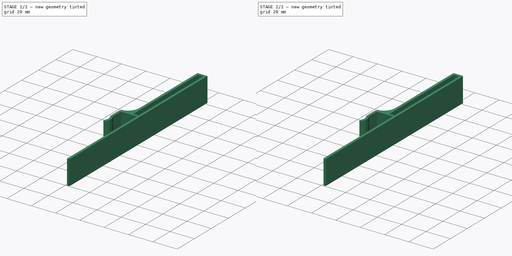
[diagram: build sequence overview — one tinted view per stage of 2, left to right]
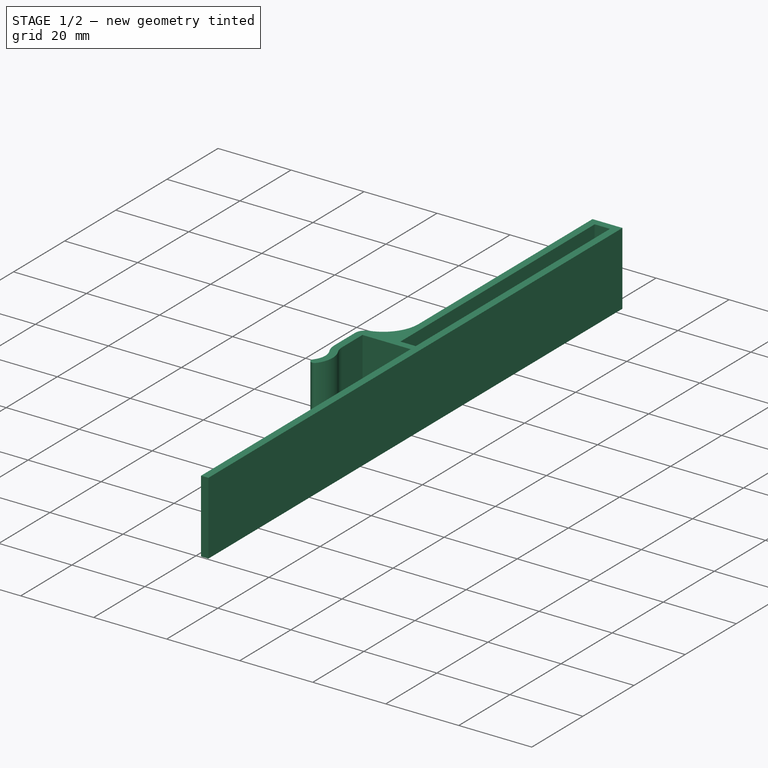
[diagram: stage 1 of 2 — iso view after this stage's code; geometry added in this stage tinted green]
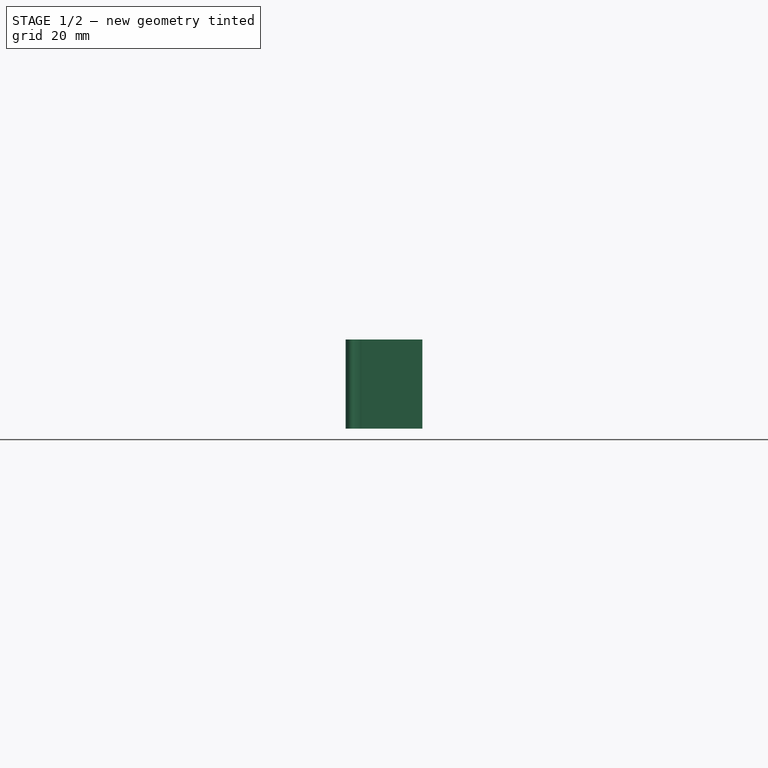
[diagram: stage 1 of 2 — front view after this stage's code; geometry added in this stage tinted green]
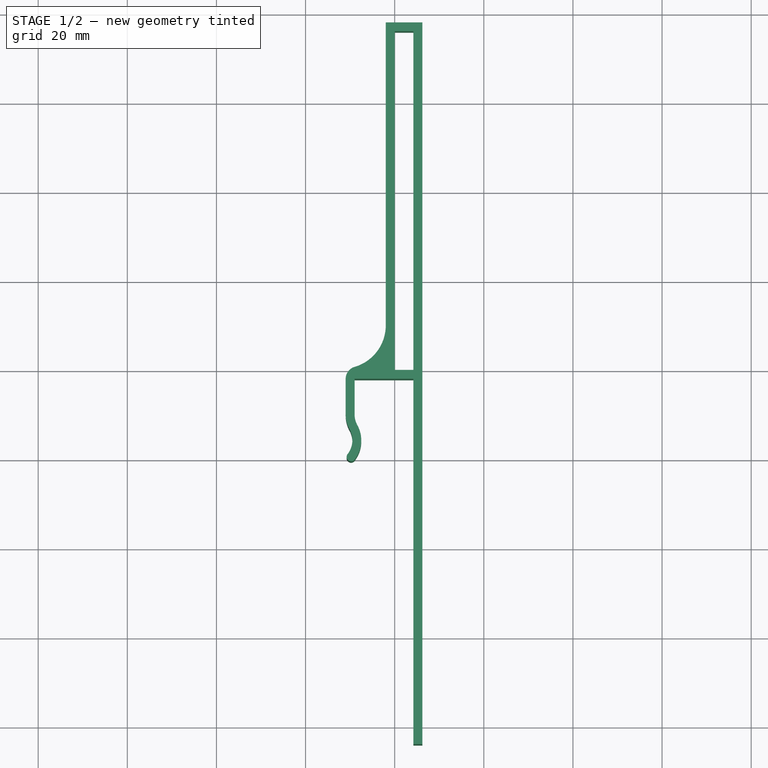
[diagram: stage 1 of 2 — top view after this stage's code; geometry added in this stage tinted green]
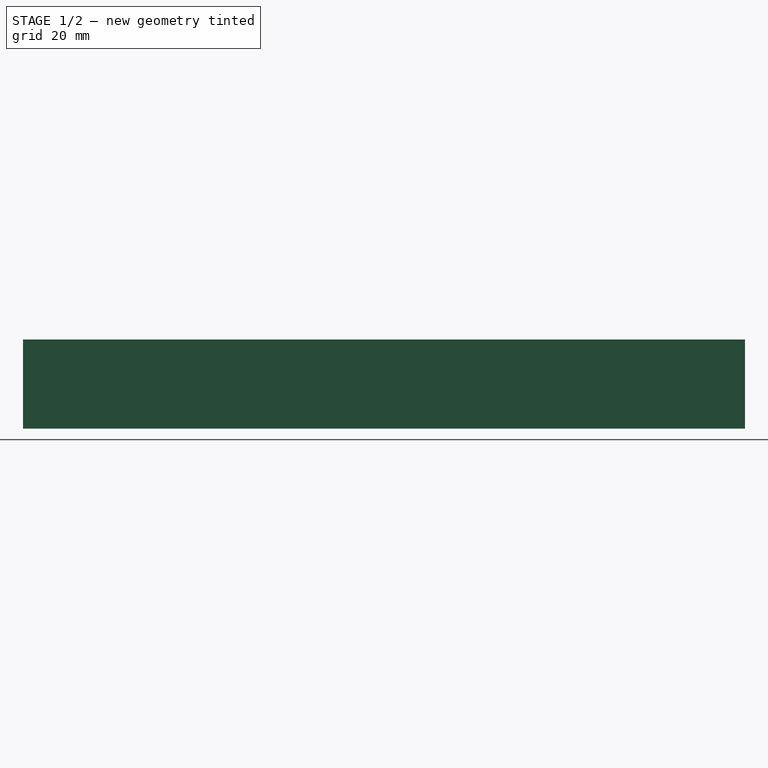
[diagram: stage 1 of 2 — right view after this stage's code; geometry added in this stage tinted green]
FCSTD DOCUMENT  (FreeCAD 0.18.4R)
Label: DrawerBackExtender2
License: All rights reserved
LicenseURL: http://en.wikipedia.org/wiki/All_rights_reserved
objects: Sketcher::SketchObject×1, PartDesign::Pad×1, PartDesign::Fillet×1, PartDesign::Body×1
note: 5 computed .brp shape members not serialized (recipe doc carries the construction recipe); baked Part::Feature solids carry a one-line shape summary decoded from their .brp

FEATURE [Sketcher::SketchObject] Sketch
  MapMode = 5
  Support = -> [XY_Plane]
  expr: Constraints[61] = Constraints.WallThickness * 4
  sketch-geometry (26):
    g0: LineSegment StartX=-9 StartY=-2 StartZ=0 EndX=4.2 EndY=-2 EndZ=0
    g1: LineSegment StartX=4.2 StartY=-2 StartZ=0 EndX=4.2 EndY=-84 EndZ=0
    g2: LineSegment StartX=4.2 StartY=-84 StartZ=0 EndX=6.2 EndY=-84 EndZ=0
    g3: LineSegment StartX=6.2 StartY=-84 StartZ=0 EndX=6.2 EndY=78 EndZ=0
    g4: LineSegment StartX=4.2 StartY=76 StartZ=0 EndX=4.2 EndY=0 EndZ=0
    g5: LineSegment StartX=4.2 StartY=0 StartZ=0 EndX=0 EndY=0 EndZ=0
    g6: LineSegment StartX=0 StartY=0 StartZ=0 EndX=0 EndY=76 EndZ=0
    g7: LineSegment StartX=-2 StartY=78 StartZ=0 EndX=-2 EndY=10 EndZ=0
    g8: LineSegment [constr] StartX=4.2 StartY=0 StartZ=0 EndX=4.2 EndY=-2 EndZ=0
    g9: LineSegment StartX=0 StartY=76 StartZ=0 EndX=4.2 EndY=76 EndZ=0
    g10: LineSegment StartX=-2 StartY=78 StartZ=0 EndX=6.2 EndY=78 EndZ=0
    g11: LineSegment [constr] StartX=4.2 StartY=76 StartZ=0 EndX=4.2 EndY=78 EndZ=0
    g12: LineSegment [constr] StartX=0 StartY=76 StartZ=0 EndX=-2 EndY=76 EndZ=0
    g13: ArcOfCircle CenterX=-14.5 CenterY=-15.8095 CenterZ=0 NormalX=0 NormalY=0 NormalZ=1 AngleXU=0 Radius=5 StartAngle=5.61624 EndAngle=6.78855
    g14: LineSegment [constr] StartX=-7.5 StartY=-2 StartZ=0 EndX=-7.5 EndY=-15.8095 EndZ=0
    g15: ArcOfCircle CenterX=-14.5 CenterY=-15.8095 CenterZ=0 NormalX=0 NormalY=0 NormalZ=1 AngleXU=0 Radius=7 StartAngle=5.61624 EndAngle=6.78855
    g16: ArcOfCircle CenterX=-4 CenterY=-10 CenterZ=0 NormalX=0 NormalY=0 NormalZ=1 AngleXU=0 Radius=5 StartAngle=3.14159 EndAngle=3.64695
    g17: ArcOfCircle CenterX=-9.78571 CenterY=-19.521 CenterZ=0 NormalX=0 NormalY=0 NormalZ=1 AngleXU=0 Radius=1 StartAngle=2.47465 EndAngle=5.61624
    g18: LineSegment StartX=-9 StartY=-2 StartZ=0 EndX=-9 EndY=-10 EndZ=0
    g19: LineSegment [constr] StartX=-10.5714 StartY=-18.9024 StartZ=0 EndX=-9 EndY=-20.1396 EndZ=0
    g20: ArcOfCircle CenterX=-11.7222 CenterY=10 CenterZ=0 NormalX=0 NormalY=0 NormalZ=1 AngleXU=0 Radius=9.72222 StartAngle=4.99618 EndAngle=6.28319
    g21: ArcOfCircle CenterX=-8.22222 CenterY=-2 CenterZ=0 NormalX=0 NormalY=0 NormalZ=1 AngleXU=0 Radius=2.77778 StartAngle=1.85459 EndAngle=3.14159
    g22: LineSegment [constr] StartX=-11 StartY=-2 StartZ=0 EndX=-9 EndY=-2 EndZ=0
    g23: LineSegment StartX=-11 StartY=-2 StartZ=0 EndX=-11 EndY=-10 EndZ=0
    g24: ArcOfCircle CenterX=-4 CenterY=-10 CenterZ=0 NormalX=0 NormalY=0 NormalZ=1 AngleXU=0 Radius=7 StartAngle=3.14159 EndAngle=3.64695
    g25: LineSegment [constr] StartX=-9 StartY=0.666667 StartZ=0 EndX=-9 EndY=-2 EndZ=0
  constraints (70):
    c: Horizontal(g0)
    c: Coincident(g0,g1)
    c: Vertical(g1)
    c: Coincident(g1,g2)
    c: Horizontal(g2)
    c: Coincident(g2,g3)
    c: Vertical(g3)
    c: Vertical(g4)
    c: Coincident(g4,g5)
    c: Horizontal(g5)
    c: Coincident(g5,g6)
    c: Vertical(g6)
    c: Vertical(g7)
    c: Coincident(g8,g4)
    c: Coincident(g8,g0)
    c: Vertical(g8)
    c: Coincident(g9,g6)
    c: Horizontal(g9)
    c: DistanceX(g2,g2) = 2  'WallThickness'
    c: DistanceX(g9,g9) = 4.2
    c: Coincident(g4,g9)
    c: Coincident(g10,g7)
    c: Coincident(g10,g3)
    c: Horizontal(g10)
    c: Coincident(g11,g4)
    c: PointOnObject(g11,g10)
    c: Vertical(g11)
    c: Coincident(g12,g6)
    c: PointOnObject(g12,g7)
    c: Horizontal(g12)
    c: Equal(g12,g11)
    c: Equal(g11,g2)
    c: DistanceY(g4,g4) = 76
    c: DistanceX(g0,g0) = 13.2
    c: DistanceY(g2,g0) = 82
    c: Equal(g8,g2)
    c: PointOnObject(g14,g0)
    c: Vertical(g14)
    c: DistanceX(g0,g14) = 1.5
    c: Coincident(g15,g13)
    c: Tangent(g15,g16) = 1.5708
    c: Tangent(g14,g15) = 1.5708
    c: Coincident(g5,g-1)  '__ANCHOR__'
    c: Coincident(g18,g0)
    c: Vertical(g18)
    c: Tangent(g16,g18) = -1.5708
    c: Tangent(g13,g17) = 1.5708
    c: Tangent(g15,g17) = -1.5708
    c: Coincident(g19,g13)
    c: Coincident(g19,g15)
    c: DistanceY(g4,g3) = 78
    c: Equal(g8,g19)
    c: Tangent(g7,g20) = 1.5708
    c: Tangent(g20,g21) = 1.5708
    c: Coincident(g22,g21) = -1.5708
    c: Coincident(g22,g0)
    c: Equal(g19,g22)
    c: Coincident(g24,g16)
    c: Tangent(g23,g24) = -1.5708
    c: Tangent(g13,g24) = 1.5708
    c: Tangent(g23,g21) = -1.5708
    c: DistanceY(g23,g23) = 8
    c: PointOnObject(g15,g18)
    c: Horizontal(g22)
    c: DistanceY(g5,g7) = 10
    c: Equal(g15,g24)
    c: Coincident(g25,g20)
    c: Coincident(g25,g0)
    c: Vertical(g25)
    c: Radius(g13) = 5
FEATURE [PartDesign::Pad] Pad
  Length = 20
  Length2 = 100
  Profile = -> Sketch
  Type = 0
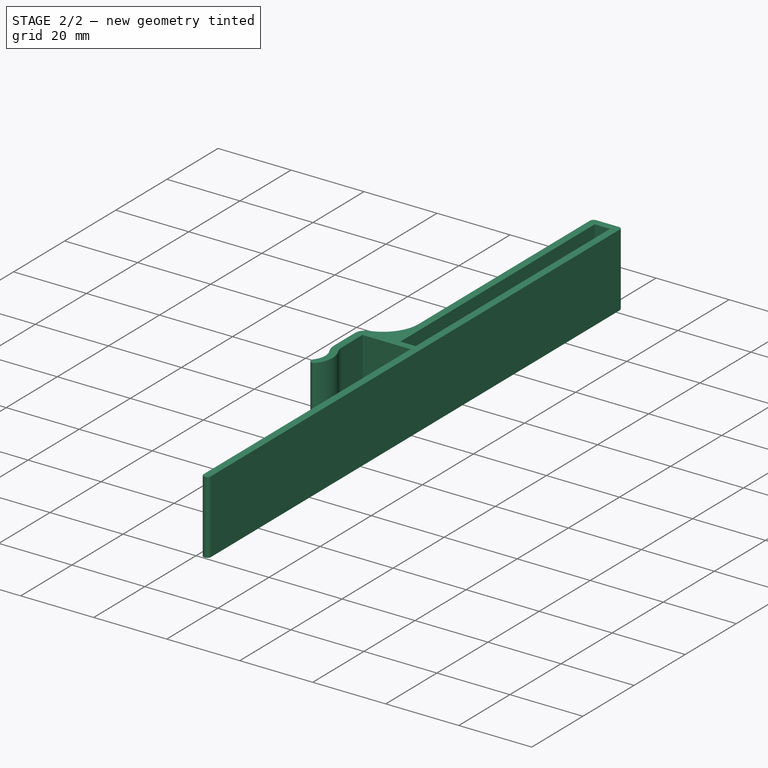
[diagram: stage 2 of 2 — iso view after this stage's code; geometry added in this stage tinted green]
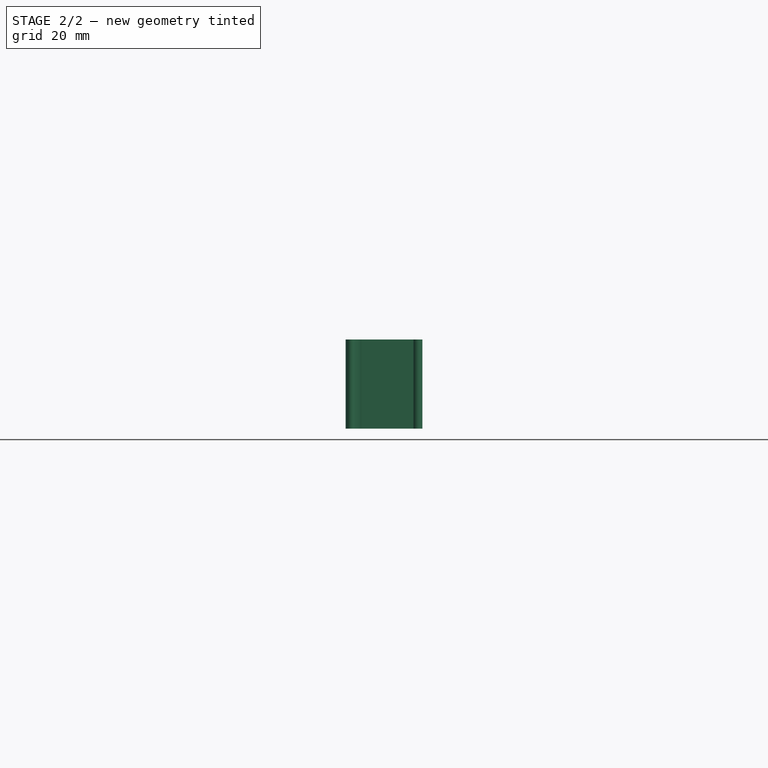
[diagram: stage 2 of 2 — front view after this stage's code; geometry added in this stage tinted green]
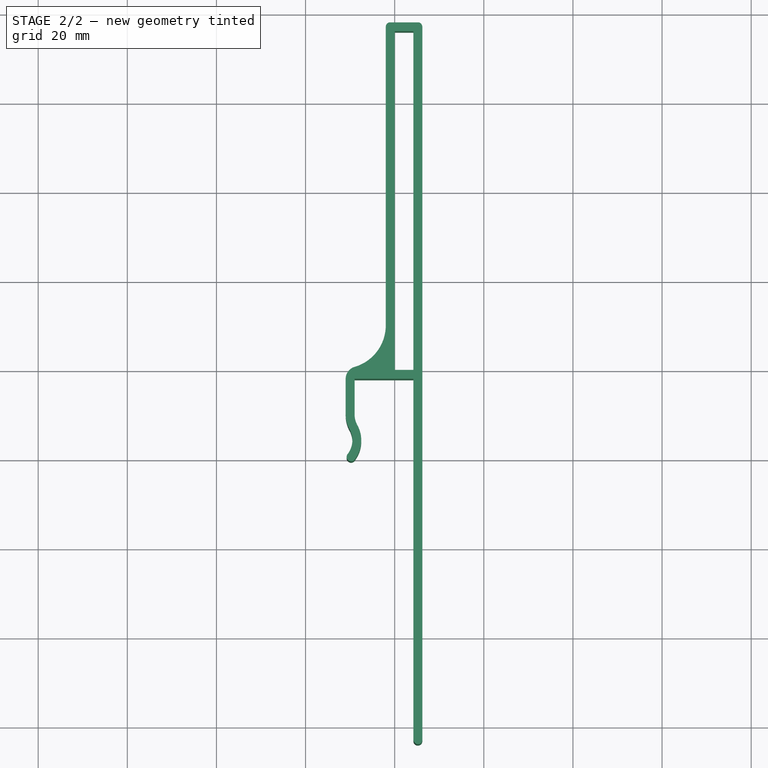
[diagram: stage 2 of 2 — top view after this stage's code; geometry added in this stage tinted green]
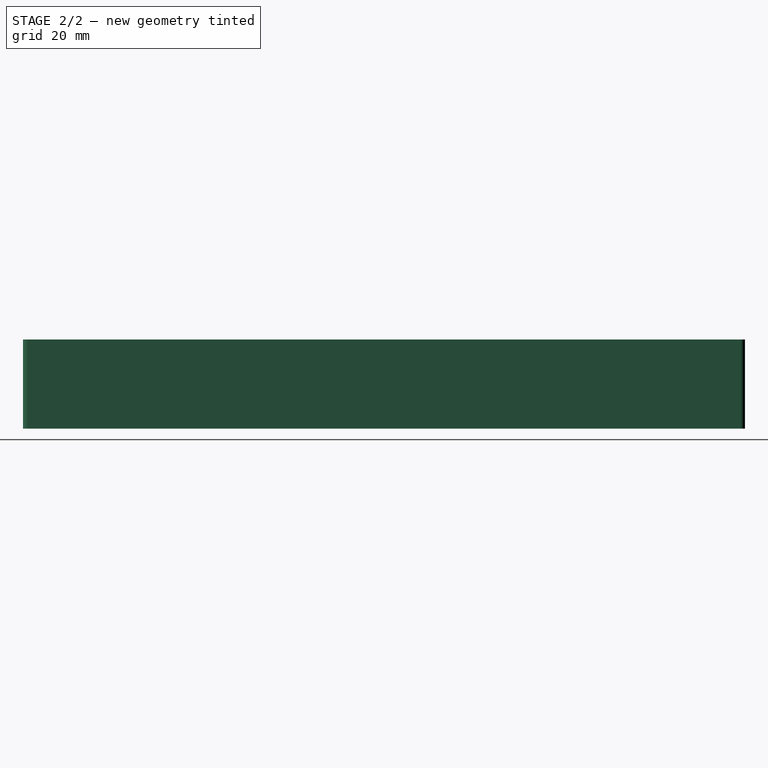
[diagram: stage 2 of 2 — right view after this stage's code; geometry added in this stage tinted green]
FEATURE [PartDesign::Fillet] Fillet
  Base = -> Pad [Edge11,Edge14,Edge8,Edge5]
  BaseFeature = -> Pad
  Radius = 0.99
FEATURE [PartDesign::Body] Body
  Group = -> [Sketch,Pad,Fillet]
  Origin = -> Origin
  Tip = -> Fillet
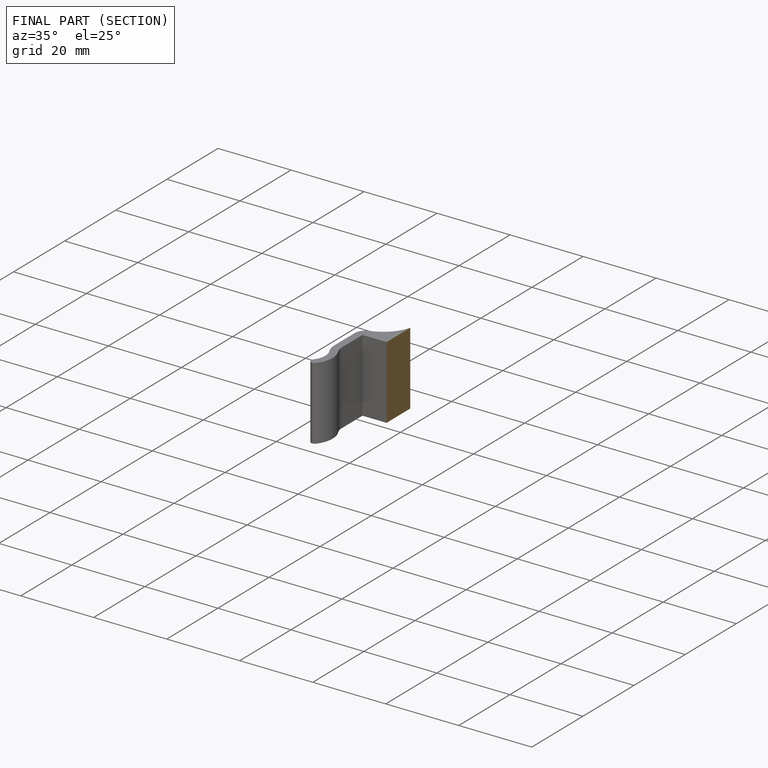
[diagram: finished part — half-section view (interior)]
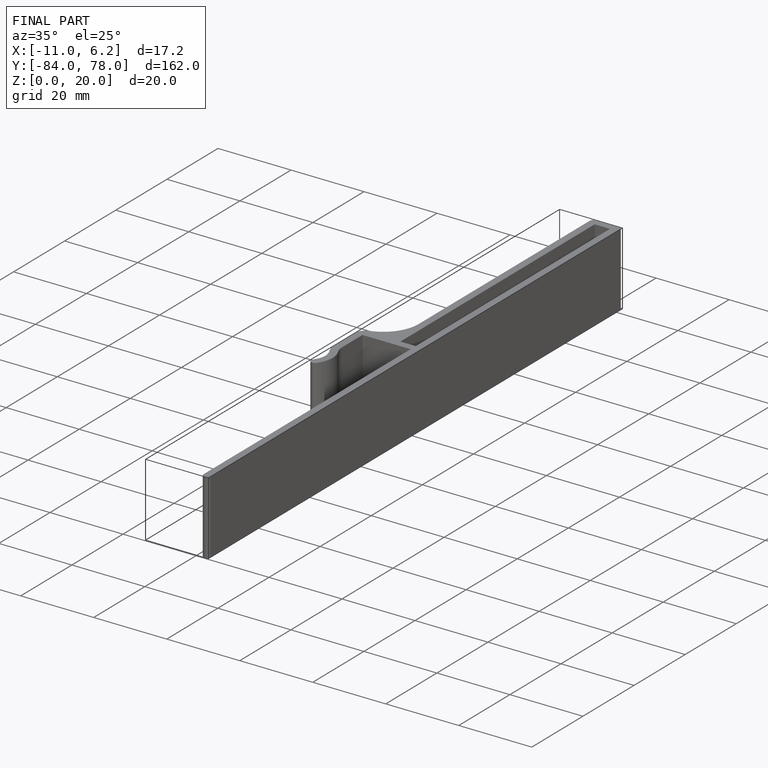
[diagram: finished part — iso view with bounding-box wireframe]
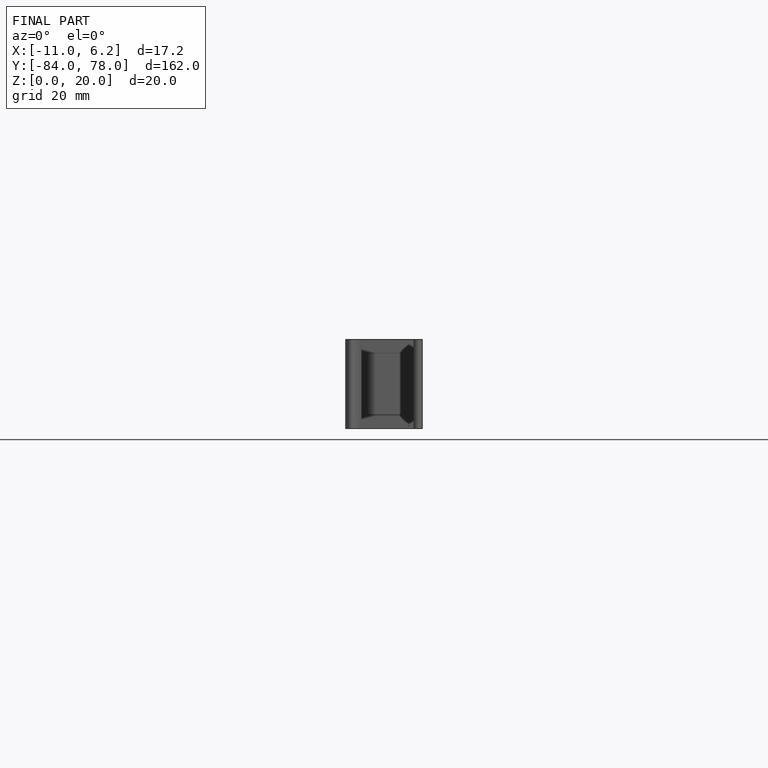
[diagram: finished part — front view with bounding-box wireframe]
